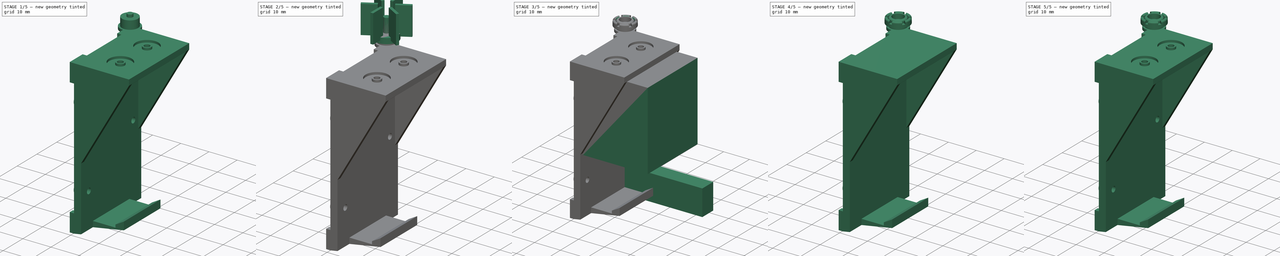
[diagram: build sequence overview — one tinted view per stage of 5, left to right]
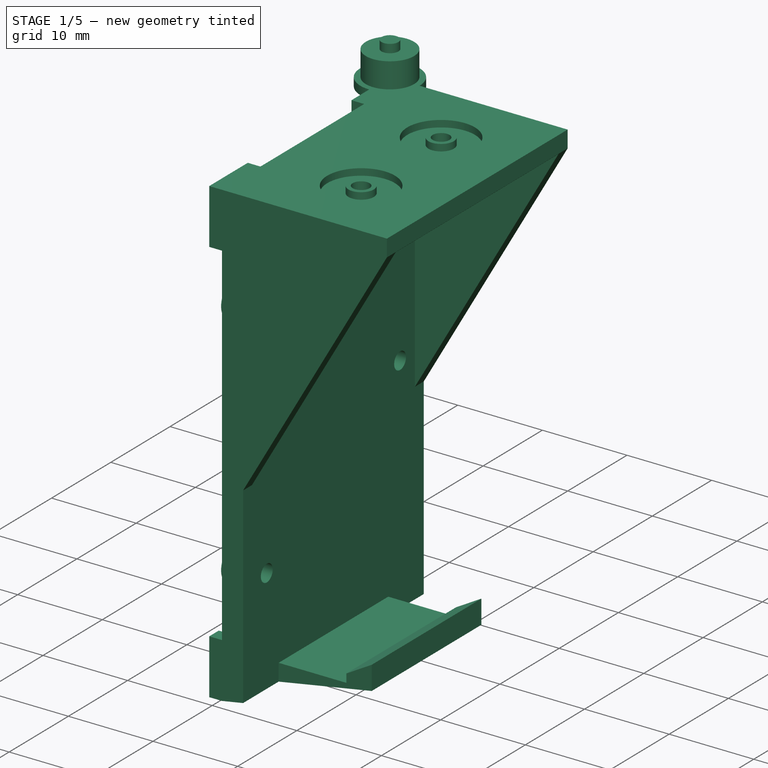
[diagram: stage 1 of 5 — iso view after this stage's code; geometry added in this stage tinted green]
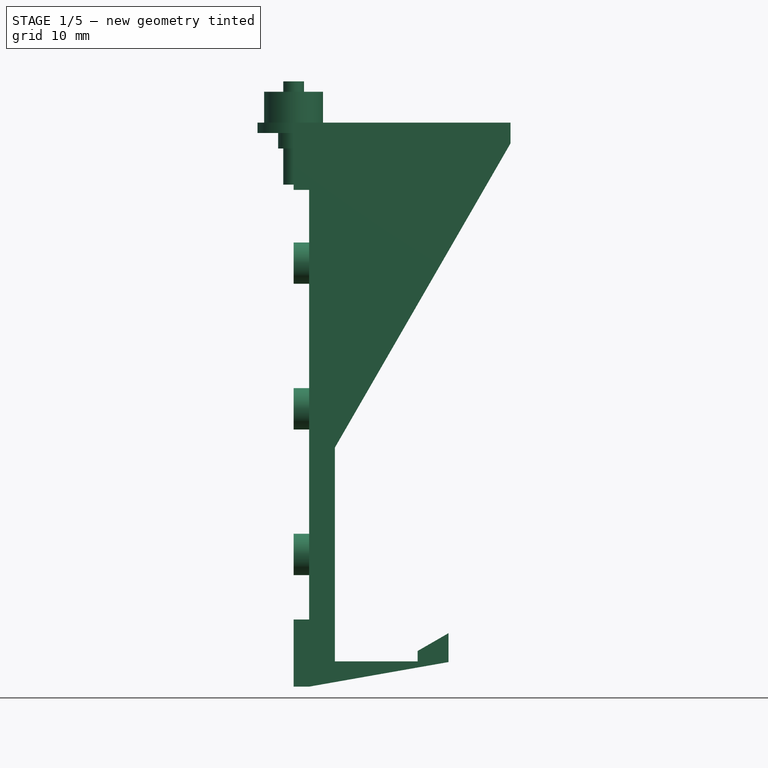
[diagram: stage 1 of 5 — front view after this stage's code; geometry added in this stage tinted green]
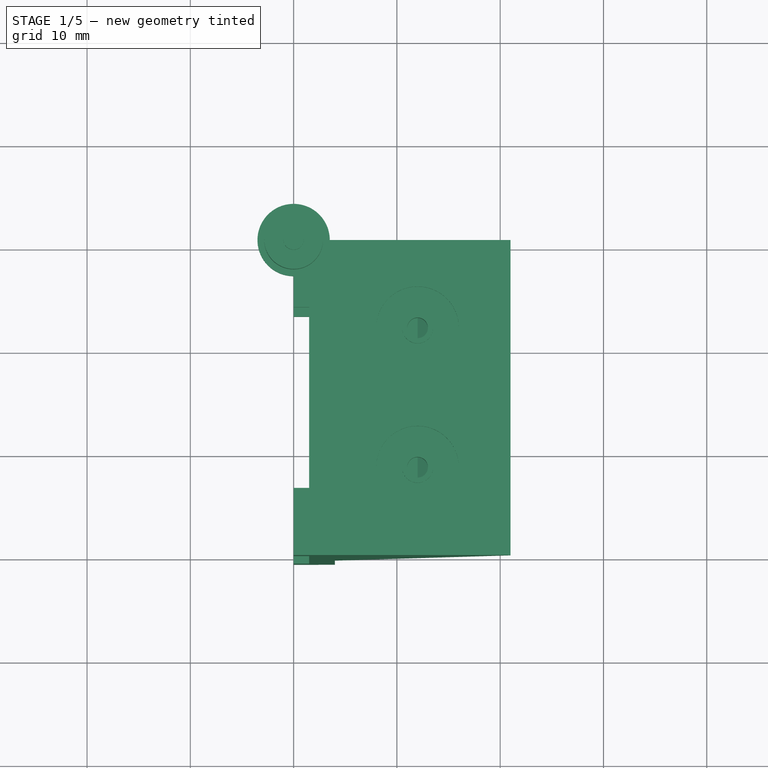
[diagram: stage 1 of 5 — top view after this stage's code; geometry added in this stage tinted green]
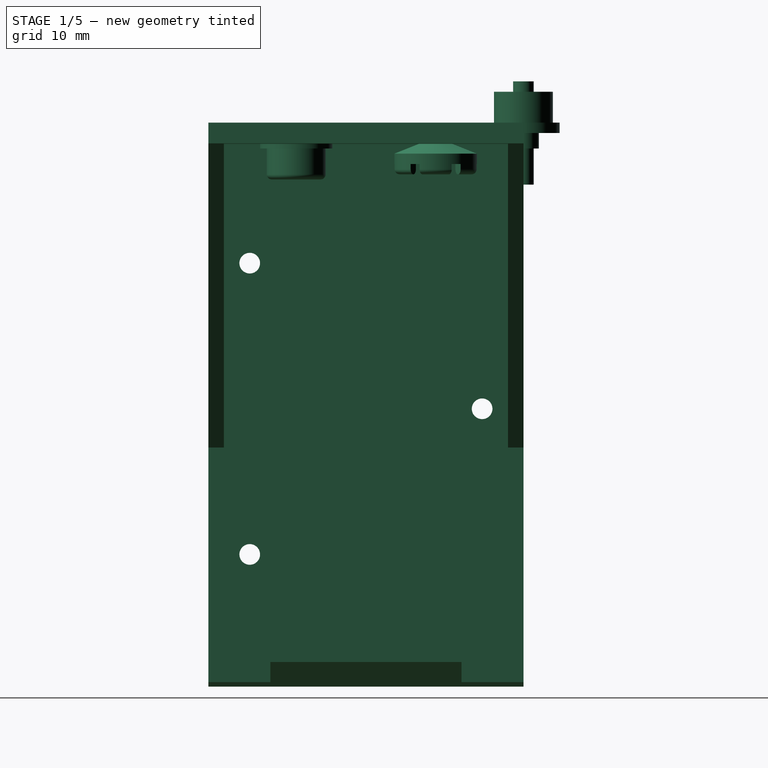
[diagram: stage 1 of 5 — right view after this stage's code; geometry added in this stage tinted green]
FCSTD DOCUMENT  (FreeCAD 0.16R6712 (Git))
Label: battery-holder-6F22
License: CreativeCommons Attribution-ShareAlike
LicenseURL: http://creativecommons.org/licenses/by-sa/4.0/
objects: Part::Cylinder×8, Sketcher::SketchObject×7, Part::Cut×7, PartDesign::Pocket×5, Part::MultiCommon×5, Part::MultiFuse×5, Part::Box×4, Part::Feature×4, App::DocumentObjectGroup×3, PartDesign::Pad×2, Part::Fillet×2, Part::Cone×1, Part::Thickness×1, Part::FeaturePython×1, Part::Compound×1
note: 60 computed .brp shape members not serialized (recipe doc carries the construction recipe); baked Part::Feature solids carry a one-line shape summary decoded from their .brp

FEATURE [App::DocumentObjectGroup] Group  label="Body"
  Group = -> [Common004]
FEATURE [Part::Cylinder] Cylinder
  Angle = 360
  Height = 3
  Radius = 2.85
FEATURE [Part::Cylinder] Cylinder001
  Angle = 360
  Height = 1
  Placement = pos=(0,0,-1) rot=(0,0,1;0rad)
  Radius = 3.5
FEATURE [Part::MultiFuse] Fusion001
  Shapes = -> [Cylinder001,Cylinder]
FEATURE [Part::Cylinder] Cylinder002
  Angle = 360
  Height = 2
  Placement = pos=(0,0,-2.5) rot=(0,0,1;0rad)
  Radius = 1.5
FEATURE [Part::Cylinder] Cylinder003
  Angle = 360
  Height = 3
  Radius = 2
FEATURE [Part::MultiFuse] Fusion002
  Shapes = -> [Cylinder002,Fusion001]
FEATURE [Part::Cylinder] Cylinder004
  Angle = 360
  Height = 10
  Placement = pos=(0,0,-6) rot=(0,0,1;0rad)
  Radius = 1
FEATURE [App::DocumentObjectGroup] Group001  label="-"
  Group = -> [Fillet]
FEATURE [Part::Feature] Common004001  label="Common005"
  shape: bbox 21 x 30.5 x 54.6 mm, 54 faces (baked)
FEATURE [Part::Feature] Fillet003
  Placement = pos=(12,-22,-2.5) rot=(0,1,0;3.14159rad)
  shape: bbox 7 x 7 x 5.5 mm, 11 faces (baked)
FEATURE [Part::Feature] Fillet002001  label="Fillet004"
  Placement = pos=(12,-8.5,-2) rot=(0,1,0;3.14159rad)
  shape: bbox 8.341 x 8.594 x 5.002 mm, 46 faces (baked)
FEATURE [Part::Compound] Compound
  Links = -> [Common004001,Fillet003,Fillet002001]
FEATURE [Part::Feature] Compound001
  shape: bbox 21 x 30.5 x 54.6 mm, 111 faces, 3 solids (baked)
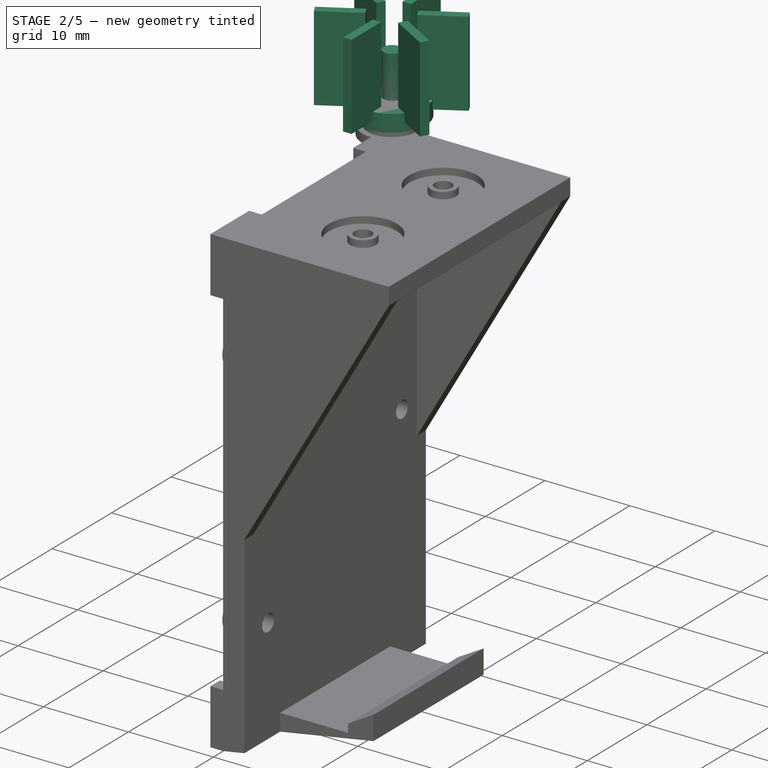
[diagram: stage 2 of 5 — iso view after this stage's code; geometry added in this stage tinted green]
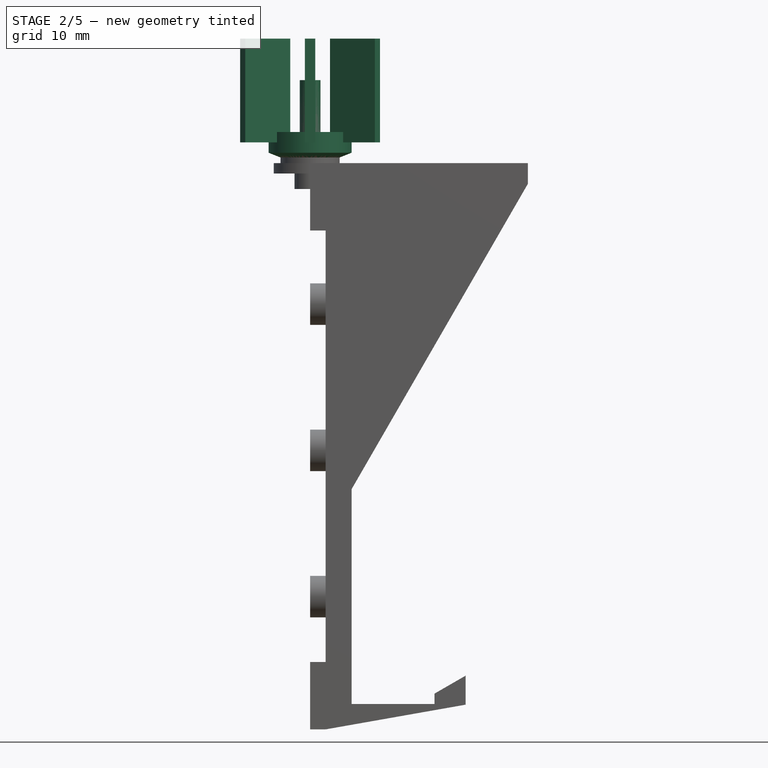
[diagram: stage 2 of 5 — front view after this stage's code; geometry added in this stage tinted green]
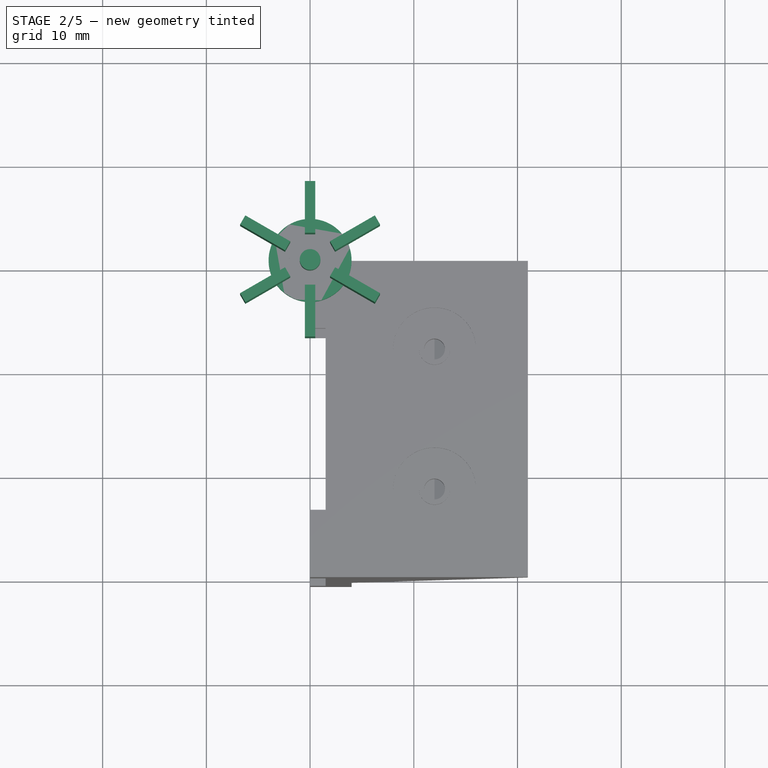
[diagram: stage 2 of 5 — top view after this stage's code; geometry added in this stage tinted green]
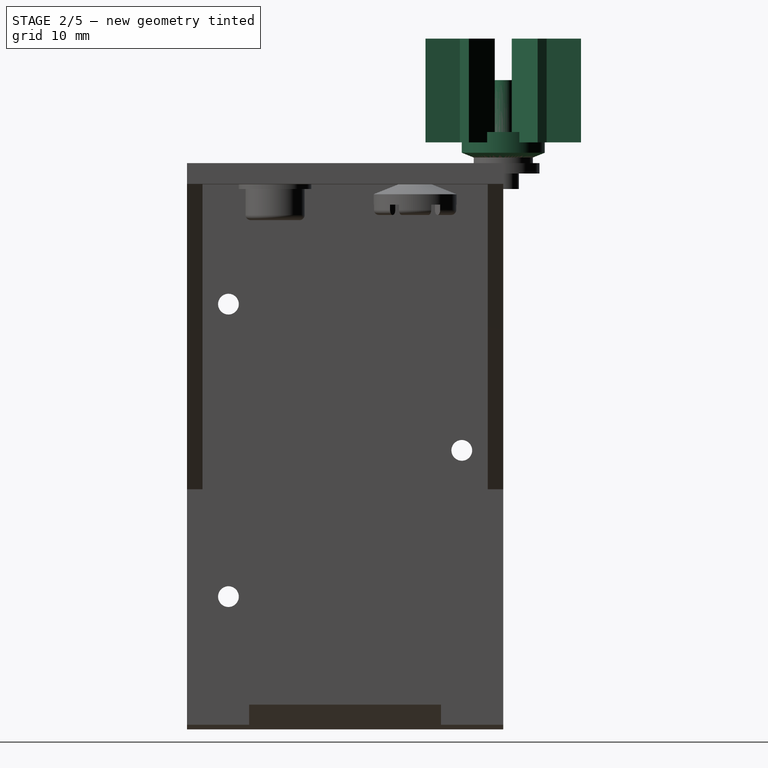
[diagram: stage 2 of 5 — right view after this stage's code; geometry added in this stage tinted green]
FEATURE [Part::Cut] Cut003
  Base = -> Fusion002
  Tool = -> Cylinder003
FEATURE [Part::Cut] Cut004
  Base = -> Cut003
  Tool = -> Cylinder004
FEATURE [Part::Cone] Cone
  Angle = 360
  Height = 1
  Radius1 = 1.5
  Radius2 = 4
FEATURE [Part::Cylinder] Cylinder005
  Angle = 360
  Height = 2
  Placement = pos=(0,0,1) rot=(0,0,1;0rad)
  Radius = 4
FEATURE [Part::Box] Box003  label="Cube003"
  Height = 10
  Length = 1
  Placement = pos=(-0.5,2.5,2) rot=(0,0,1;0rad)
  Width = 5
FEATURE [Part::FeaturePython] Array  # Draft array (typed FeaturePython)
  Angle = 360
  ArrayType = 1
  Axis = (0,0,1)
  Base = -> Box003
  Center = (0,0,0)
  Fuse = false
  IntervalAxis = (0,0,0)
  IntervalX = (1,0,0)
  IntervalY = (0,1,0)
  IntervalZ = (0,0,0)
  NumberPolar = 6
  NumberX = 2
  NumberY = 2
  NumberZ = 1
FEATURE [Part::Cylinder] Cylinder006
  Angle = 360
  Height = 3
  Placement = pos=(0,0,-2) rot=(0,0,1;0rad)
  Radius = 1.5
FEATURE [Part::Cylinder] Cylinder007
  Angle = 360
  Height = 10
  Placement = pos=(0,0,-2) rot=(0,0,1;0rad)
  Radius = 1
FEATURE [App::DocumentObjectGroup] Group002  label="+"
  Group = -> [Fillet002]
FEATURE [Part::Fillet] Fillet
  Base = -> Cut004
  Edges = 1 edges r=0.5: [Edge14]
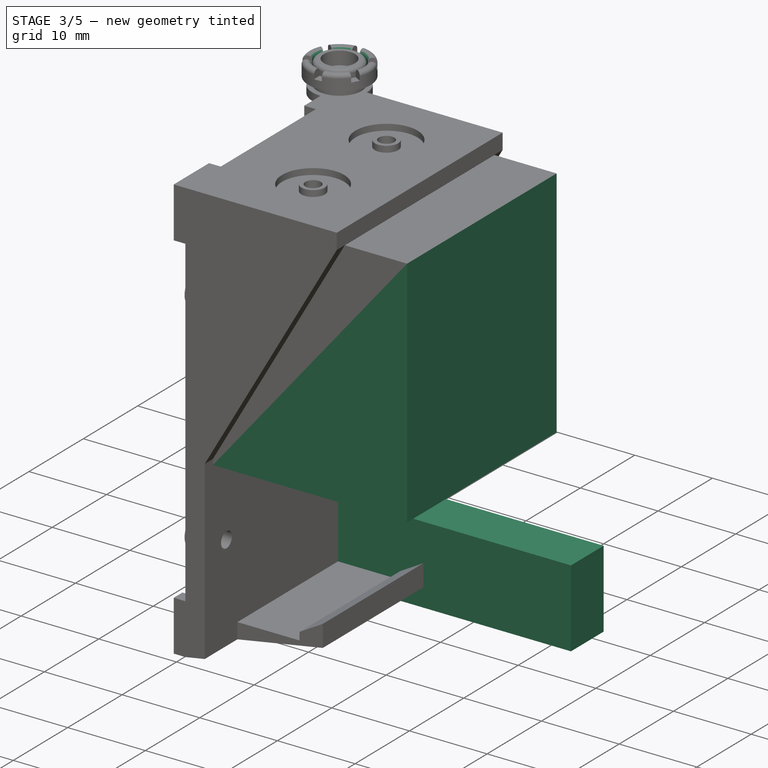
[diagram: stage 3 of 5 — iso view after this stage's code; geometry added in this stage tinted green]
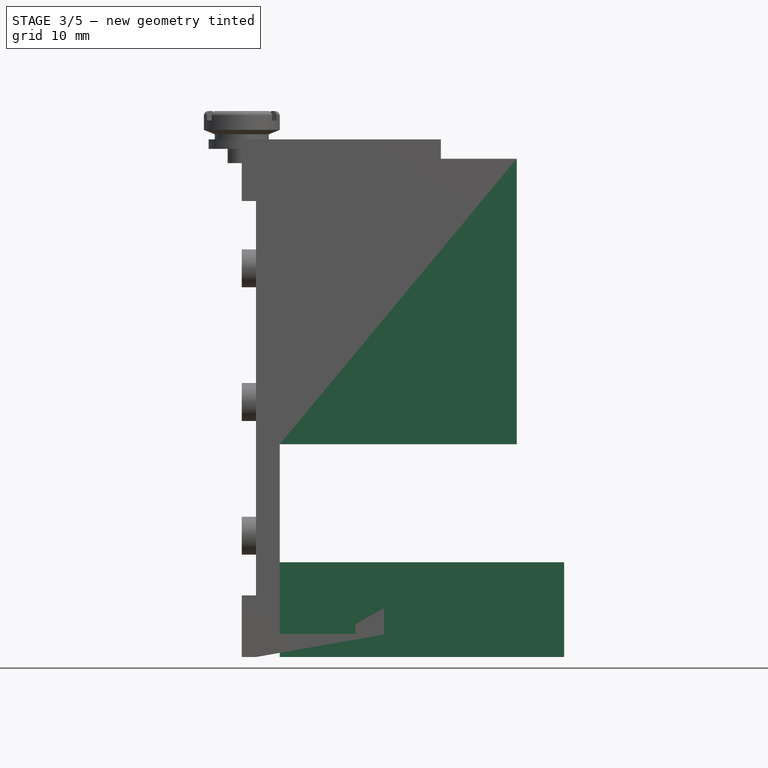
[diagram: stage 3 of 5 — front view after this stage's code; geometry added in this stage tinted green]
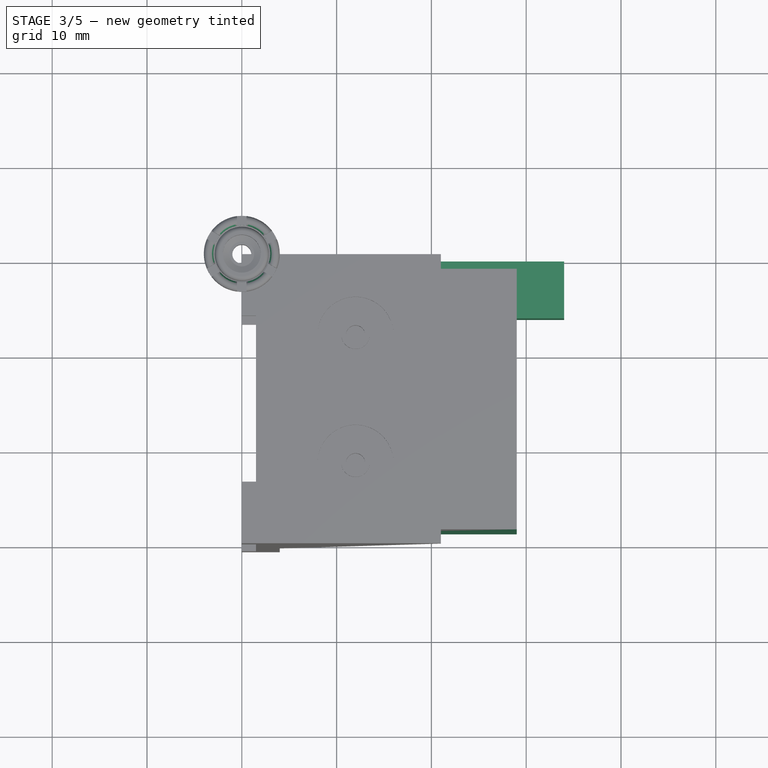
[diagram: stage 3 of 5 — top view after this stage's code; geometry added in this stage tinted green]
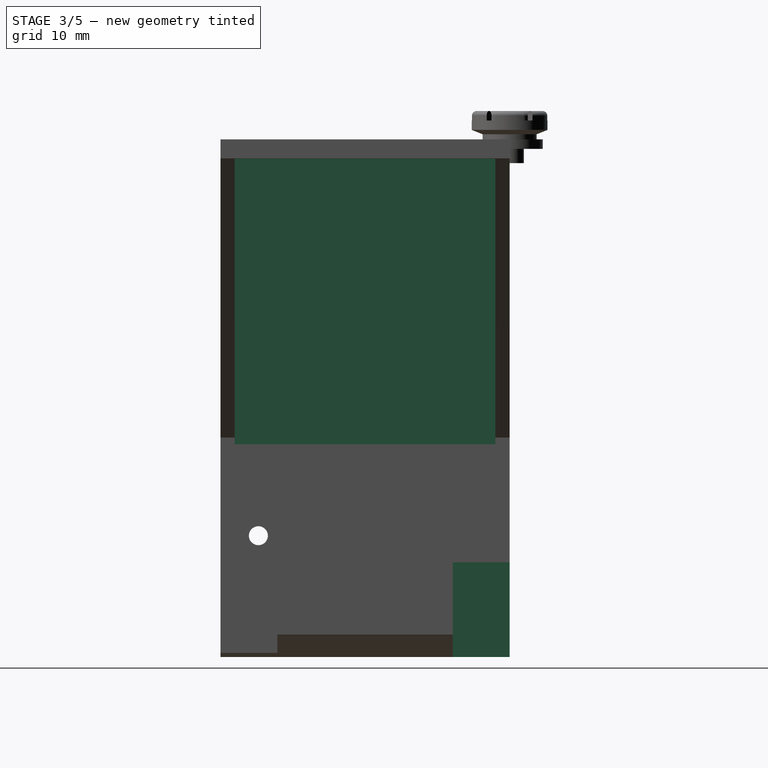
[diagram: stage 3 of 5 — right view after this stage's code; geometry added in this stage tinted green]
FEATURE [Part::Box] Box  label="Cube"
  Height = 30.1147
  Length = 25
  Placement = pos=(4,-29,-32.15) rot=(0,0,1;0rad)
  Width = 27.5
FEATURE [Part::Box] Box001  label="Cube001"
  Height = 10
  Length = 30
  Placement = pos=(4,-6,-54.6) rot=(0,0,1;0rad)
  Width = 6
FEATURE [Part::MultiFuse] Fusion003
  Shapes = -> [Cylinder005,Cone]
FEATURE [Part::Thickness] Thickness
  Faces = -> Fusion003 [Face1]
  Intersection = false
  Join = 0
  Mode = 0
  SelfIntersection = false
  Value = -1
FEATURE [Part::Cut] Cut005
  Base = -> Thickness
  Tool = -> Array
FEATURE [Part::MultiFuse] Fusion004
  Shapes = -> [Cylinder006,Cut005]
FEATURE [Part::Cut] Cut006
  Base = -> Fusion004
  Tool = -> Cylinder007
FEATURE [Part::Fillet] Fillet002
  Base = -> Cut006
  Edges = 14 edges r=0.49: [Edge11,Edge15,Edge19,Edge23,Edge27,Edge31,Edge35,Edge38,Edge41,Edge48,Edge56,Edge64,Edge73,Edge81]
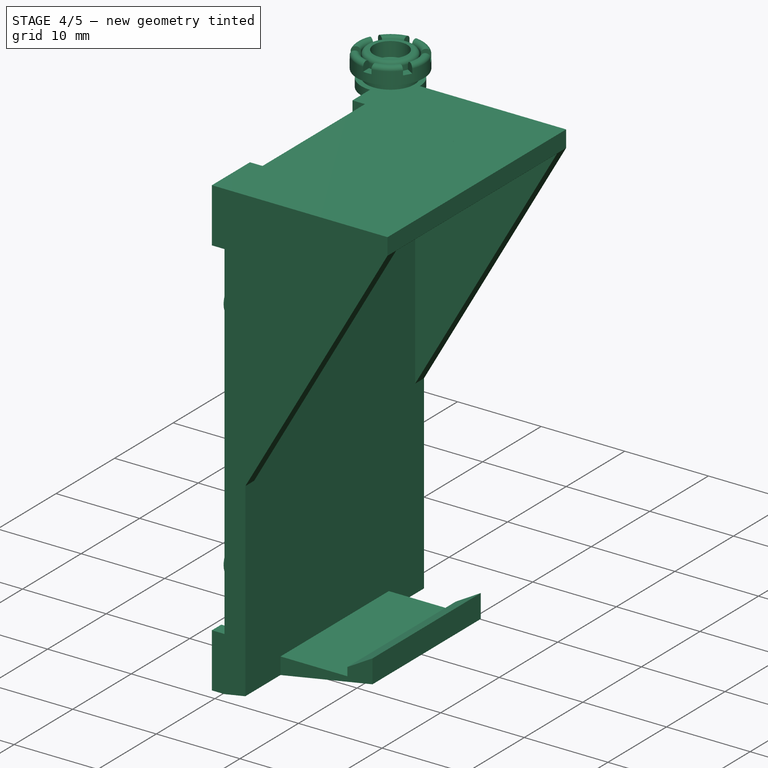
[diagram: stage 4 of 5 — iso view after this stage's code; geometry added in this stage tinted green]
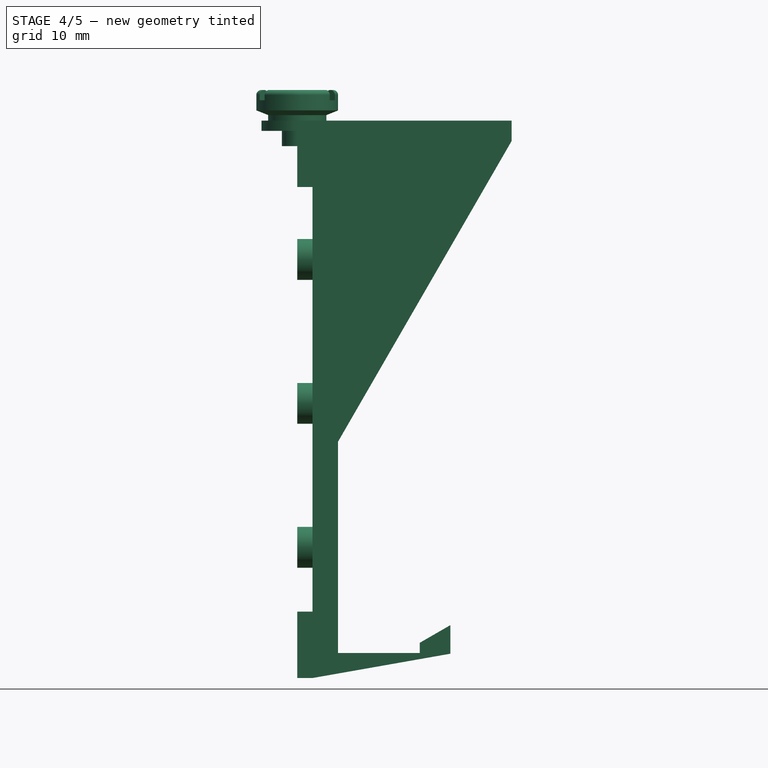
[diagram: stage 4 of 5 — front view after this stage's code; geometry added in this stage tinted green]
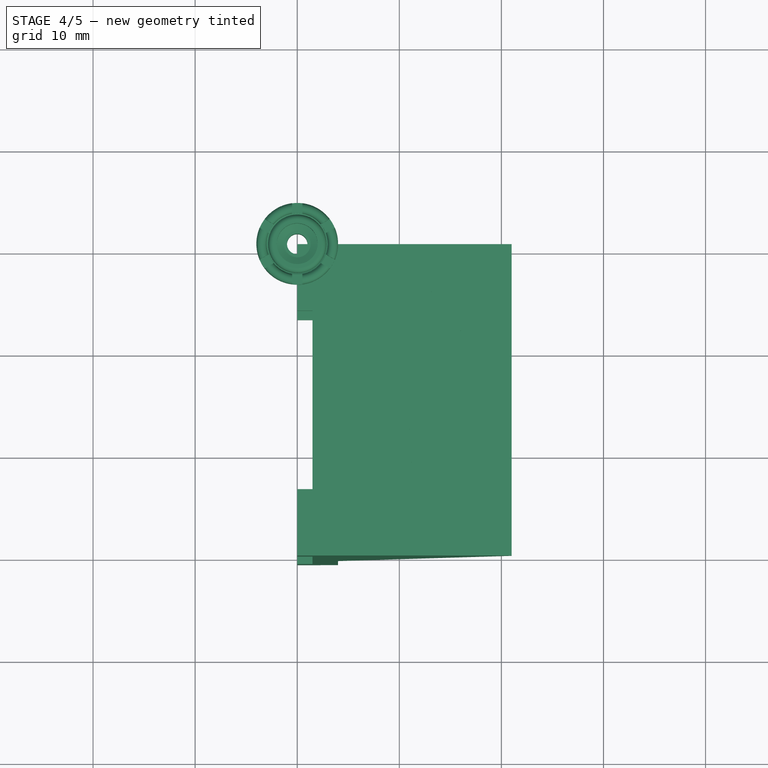
[diagram: stage 4 of 5 — top view after this stage's code; geometry added in this stage tinted green]
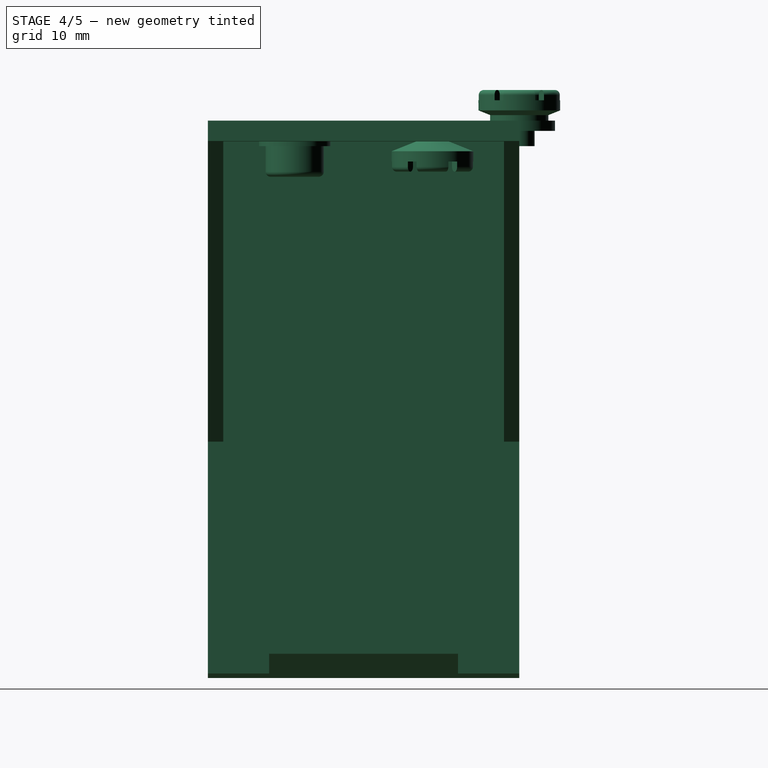
[diagram: stage 4 of 5 — right view after this stage's code; geometry added in this stage tinted green]
FEATURE [Sketcher::SketchObject] Sketch
  Placement = pos=(0,0,0) rot=(1,0,0;1.5708rad)
  sketch-geometry (15):
    g0: LineSegment StartX=0 StartY=0 StartZ=0 EndX=21 EndY=0 EndZ=0
    g1: LineSegment StartX=4 StartY=-31.4449 StartZ=0 EndX=4 EndY=-52.1516 EndZ=0
    g2: LineSegment StartX=4 StartY=-52.1516 StartZ=0 EndX=12 EndY=-52.1516 EndZ=0
    g3: LineSegment StartX=12 StartY=-52.1516 StartZ=0 EndX=12 EndY=-51.1516 EndZ=0
    g4: LineSegment StartX=12 StartY=-51.1516 StartZ=0 EndX=15 EndY=-49.4196 EndZ=0
    g5: LineSegment StartX=15 StartY=-49.4196 StartZ=0 EndX=15 EndY=-52.2196 EndZ=0
    g6: LineSegment StartX=15 StartY=-52.2196 StartZ=0 EndX=1.5 EndY=-54.6 EndZ=0
    g7: LineSegment StartX=1.5 StartY=-54.6 StartZ=0 EndX=0 EndY=-54.6 EndZ=0
    g8: LineSegment StartX=0 StartY=-54.6 StartZ=0 EndX=0 EndY=-48.1 EndZ=0
    g9: LineSegment StartX=0 StartY=-48.1 StartZ=0 EndX=1.5 EndY=-48.1 EndZ=0
    g10: LineSegment StartX=1.5 StartY=-48.1 StartZ=0 EndX=1.5 EndY=-6.5 EndZ=0
    g11: LineSegment StartX=1.5 StartY=-6.5 StartZ=0 EndX=0 EndY=-6.5 EndZ=0
    g12: LineSegment StartX=0 StartY=-6.5 StartZ=0 EndX=0 EndY=0 EndZ=0
    g13: LineSegment StartX=21 StartY=0 StartZ=0 EndX=21 EndY=-2 EndZ=0
    g14: LineSegment StartX=21 StartY=-2 StartZ=0 EndX=4 EndY=-31.4449 EndZ=0
  constraints (45):
    c: PointOnObject(g0,g-1)
    c: Vertical(g1)
    c: Coincident(g1,g2)
    c: Coincident(g2,g3)
    c: Coincident(g3,g4)
    c: Coincident(g4,g5)
    c: Coincident(g5,g6)
    c: Coincident(g6,g7)
    c: Coincident(g7,g8)
    c: Vertical(g8)
    c: Coincident(g8,g9)
    c: Coincident(g9,g10)
    c: Vertical(g10)
    c: Coincident(g10,g11)
    c: Coincident(g11,g12)
    c: Coincident(g12,g0)
    c: Vertical(g12)
    c: Coincident(g0,g13)
    c: Vertical(g13)
    c: Coincident(g13,g14)
    c: Coincident(g14,g1)
    c: PointOnObject(g0,g-1)
    c: DistanceX(g0,g0) = 21
    c: DistanceX(g10,g1) = 2.5
    c: Horizontal(g11)
    c: Horizontal(g9)
    c: Horizontal(g7)
    c: DistanceY(g7,g-1) = 54.6
    c: DistanceX(g7,g6) = 1.5
    c: Equal(g7,g9)
    c: Equal(g9,g11)
    c: DistanceY(g13,g13) = 2
    c: Angle(g0,g14) = 1.0472
    c: Vertical(g5)
    c: DistanceY(g5,g5) = 2.8
    c: Angle(g6,g-2) = 1.39626
    c: Vertical(g3)
    c: Horizontal(g2)
    c: Angle(g-2,g4) = 2.0944
    c: DistanceY(g2,g3) = 1
    c: PointOnObject(g0,g-2)
    c: DistanceY(g7,g8) = 6.5
    c: Equal(g8,g12)
    c: DistanceX(g3,g4) = 3
    c: DistanceX(g7,g5) = 15
FEATURE [PartDesign::Pad] Pad
  Length = 30.5
  Length2 = 100
  Placement = pos=(0,0,0) rot=(1,0,0;1.5708rad)
  Sketch = -> Sketch
  Type = 0
FEATURE [Part::Cut] Cut
  Base = -> Pad
  Tool = -> Box
FEATURE [Part::Box] Box002  label="Cube002"
  Height = 10
  Length = 30
  Placement = pos=(4,-30.5,-54.6) rot=(0,0,1;0rad)
  Width = 6
FEATURE [Part::Cut] Cut001
  Base = -> Cut
  Tool = -> Box001
FEATURE [Part::Cut] Cut002
  Base = -> Cut001
  Tool = -> Box002
FEATURE [Sketcher::SketchObject] Sketch001
  ExternalGeometry = -> [Cut002]
  Placement = pos=(0,0,0) rot=(0.57735,-0.57735,-0.57735;2.0944rad)
  Support = -> Cut002 [Face2]
  sketch-geometry (8):
    g0: LineSegment StartX=6.5 StartY=3.4 StartZ=0 EndX=24 EndY=3.4 EndZ=0
    g1: LineSegment StartX=24 StartY=3.4 StartZ=0 EndX=24 EndY=-1.6 EndZ=0
    g2: LineSegment StartX=24 StartY=-1.6 StartZ=0 EndX=28.9 EndY=-1.6 EndZ=0
    g3: LineSegment StartX=28.9 StartY=-1.6 StartZ=0 EndX=28.9 EndY=-6.5 EndZ=0
    g4: LineSegment StartX=28.9 StartY=-6.5 StartZ=0 EndX=1.6 EndY=-6.5 EndZ=0
    g5: LineSegment StartX=1.6 StartY=-6.5 StartZ=0 EndX=1.6 EndY=-1.6 EndZ=0
    g6: LineSegment StartX=1.6 StartY=-1.6 StartZ=0 EndX=6.5 EndY=-1.6 EndZ=0
    g7: LineSegment StartX=6.5 StartY=-1.6 StartZ=0 EndX=6.5 EndY=3.4 EndZ=0
  constraints (24):
    c: Horizontal(g0)
    c: Coincident(g0,g1)
    c: Vertical(g1)
    c: Coincident(g1,g2)
    c: Horizontal(g2)
    c: Coincident(g2,g3)
    c: Vertical(g3)
    c: Coincident(g3,g4)
    c: Horizontal(g4)
    c: Coincident(g4,g5)
    c: Vertical(g5)
    c: Coincident(g5,g6)
    c: Horizontal(g6)
    c: Coincident(g6,g7)
    c: Coincident(g7,g0)
    c: Vertical(g7)
    c: Equal(g5,g6)
    c: Equal(g6,g2)
    c: Equal(g2,g3)
    c: DistanceY(g6,g-1) = 1.6
    c: DistanceX(g-1,g4) = 1.6
    c: DistanceX(g3,g-3) = 1.6
    c: DistanceX(g-1,g6) = 6.5
    c: DistanceY(g1,g1) = 5
FEATURE [PartDesign::Pocket] Pocket
  Length = 1.5
  Sketch = -> Sketch001
  Type = 0
FEATURE [Sketcher::SketchObject] Sketch002
  ExternalGeometry = -> [Pocket]
  Placement = pos=(0,0,0) rot=(0.57735,-0.57735,-0.57735;2.0944rad)
  Support = -> Pocket [Face13]
  sketch-geometry (8):
    g0: LineSegment StartX=1.6 StartY=-48.1 StartZ=0 EndX=28.9 EndY=-48.1 EndZ=0
    g1: LineSegment StartX=28.9 StartY=-48.1 StartZ=0 EndX=28.9 EndY=-53 EndZ=0
    g2: LineSegment StartX=28.9 StartY=-53 StartZ=0 EndX=24 EndY=-53 EndZ=0
    g3: LineSegment StartX=24 StartY=-53 StartZ=0 EndX=24 EndY=-58 EndZ=0
    g4: LineSegment StartX=24 StartY=-58 StartZ=0 EndX=6.5 EndY=-58 EndZ=0
    g5: LineSegment StartX=6.5 StartY=-58 StartZ=0 EndX=6.5 EndY=-53 EndZ=0
    g6: LineSegment StartX=6.5 StartY=-53 StartZ=0 EndX=1.6 EndY=-53 EndZ=0
    g7: LineSegment StartX=1.6 StartY=-53 StartZ=0 EndX=1.6 EndY=-48.1 EndZ=0
  constraints (24):
    c: Horizontal(g0)
    c: Coincident(g0,g1)
    c: Vertical(g1)
    c: Coincident(g1,g2)
    c: Horizontal(g2)
    c: Coincident(g2,g3)
    c: Vertical(g3)
    c: Coincident(g3,g4)
    c: Horizontal(g4)
    c: Coincident(g4,g5)
    c: Vertical(g5)
    c: Coincident(g5,g6)
    c: Horizontal(g6)
    c: Coincident(g6,g7)
    c: Coincident(g7,g0)
    c: Vertical(g7)
    c: Equal(g1,g2)
    c: Equal(g2,g6)
    c: Equal(g6,g7)
    c: DistanceX(g-1,g0) = 1.6
    c: DistanceY(g-3,g1) = 1.6
    c: DistanceY(g-3,g0) = 6.5
    c: DistanceY(g3,g3) = 5
    c: DistanceX(g0,g-3) = 1.6
FEATURE [PartDesign::Pocket] Pocket001
  Length = 1.5
  Sketch = -> Sketch002
  Type = 0
FEATURE [Part::MultiCommon] Common
  Shapes = -> [Cut002,Pocket]
FEATURE [Part::MultiCommon] Common001
  Shapes = -> [Common,Pocket001]
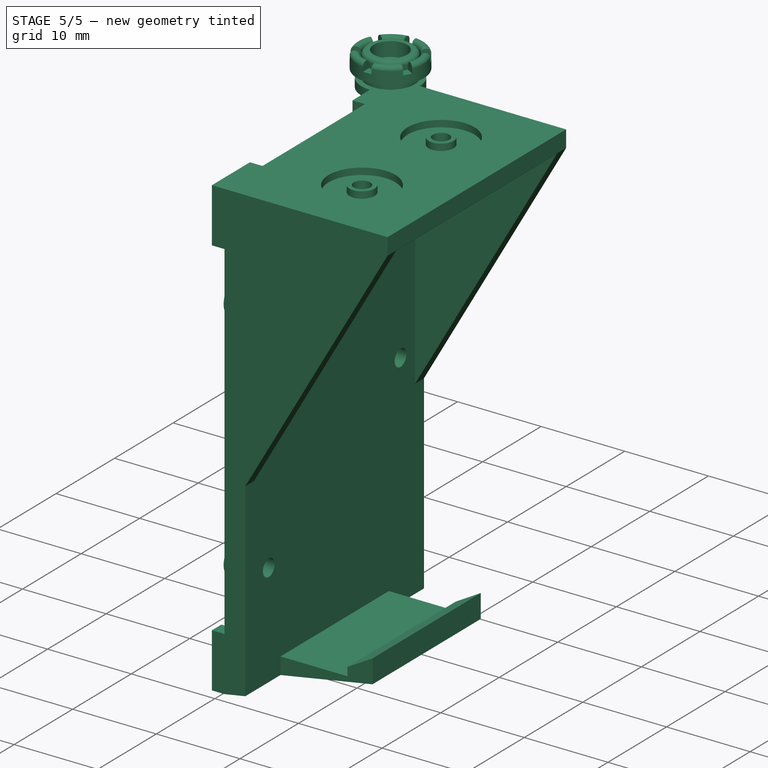
[diagram: stage 5 of 5 — iso view after this stage's code; geometry added in this stage tinted green]
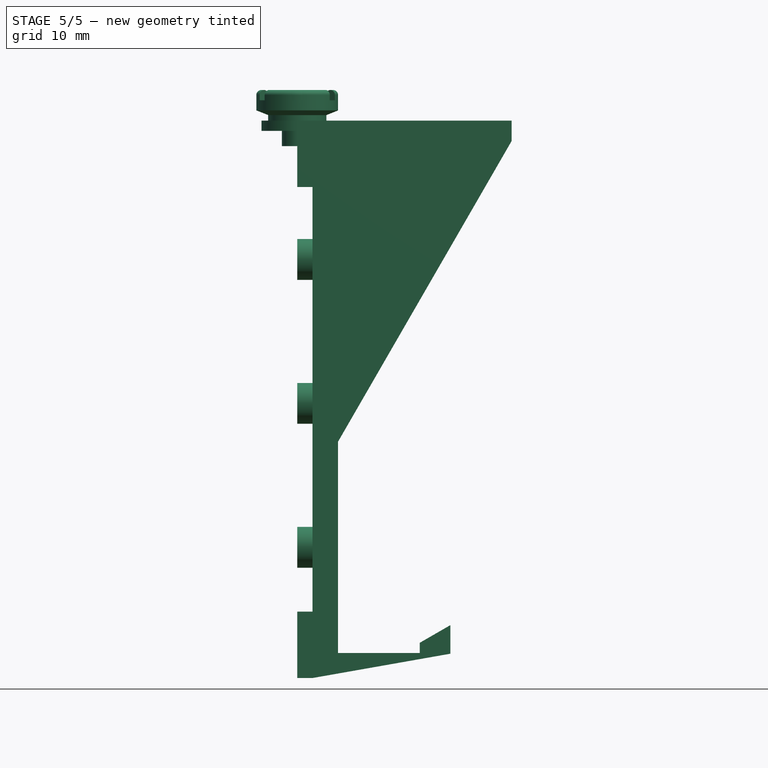
[diagram: stage 5 of 5 — front view after this stage's code; geometry added in this stage tinted green]
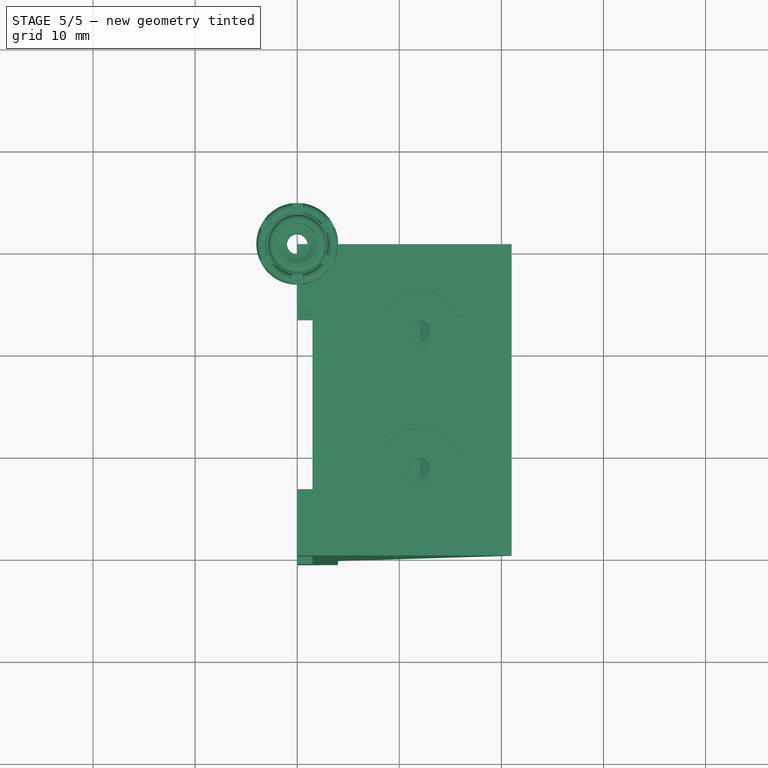
[diagram: stage 5 of 5 — top view after this stage's code; geometry added in this stage tinted green]
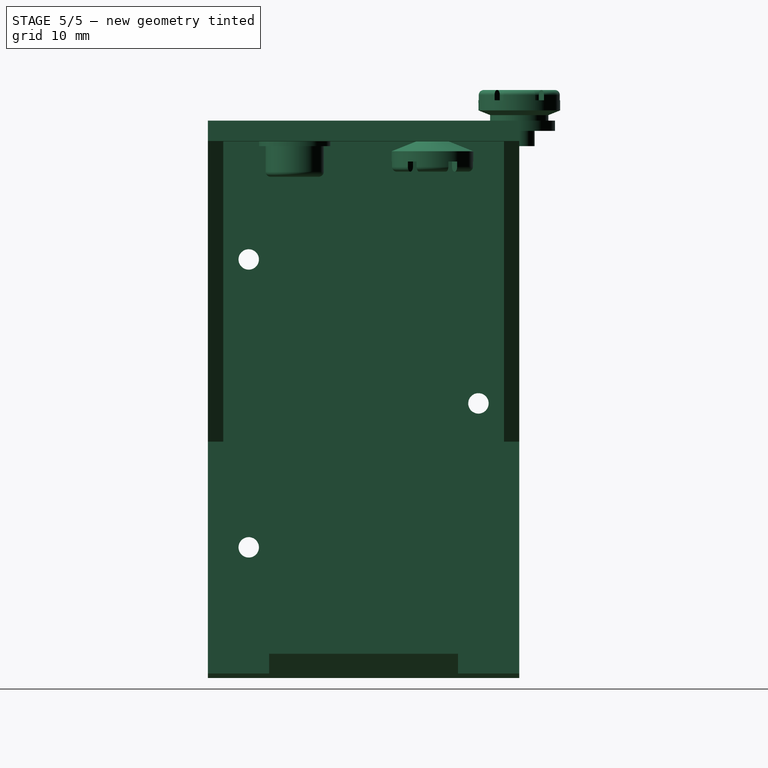
[diagram: stage 5 of 5 — right view after this stage's code; geometry added in this stage tinted green]
FEATURE [Sketcher::SketchObject] Sketch003
  ExternalGeometry = -> [Common001]
  Placement = pos=(1.5,0,0) rot=(0.57735,-0.57735,-0.57735;2.0944rad)
  Support = -> Common001 [Face39]
  sketch-geometry (3):
    g0: Circle CenterX=4 CenterY=-27.7 CenterZ=0 NormalX=0 NormalY=0 NormalZ=1 Radius=2
    g1: Circle CenterX=26.5 CenterY=-13.6 CenterZ=0 NormalX=0 NormalY=0 NormalZ=1 Radius=2
    g2: Circle CenterX=26.5 CenterY=-41.8 CenterZ=0 NormalX=0 NormalY=0 NormalZ=1 Radius=2
  constraints (9):
    c: Equal(g0,g1)
    c: Equal(g1,g2)
    c: Radius(g1) = 2
    c: DistanceY(g1,g-1) = 13.6
    c: DistanceY(g2,g-1) = 41.8
    c: DistanceY(g0,g-1) = 27.7
    c: DistanceX(g-1,g0) = 4
    c: DistanceX(g1,g-3) = 4
    c: DistanceX(g2,g-3) = 4
FEATURE [PartDesign::Pad] Pad001
  Length = 1.5
  Length2 = 100
  Sketch = -> Sketch003
  Type = 0
FEATURE [Part::MultiFuse] Fusion
  Shapes = -> [Pad001,Common001]
FEATURE [Sketcher::SketchObject] Sketch004
  ExternalGeometry = -> [Fusion]
  Placement = pos=(4,0,0) rot=(0.57735,0.57735,0.57735;2.0944rad)
  Support = -> Fusion [Face30]
  sketch-geometry (3):
    g0: Circle CenterX=-26.5 CenterY=-13.6 CenterZ=0 NormalX=0 NormalY=0 NormalZ=1 Radius=1
    g1: Circle CenterX=-26.5 CenterY=-41.8 CenterZ=0 NormalX=0 NormalY=0 NormalZ=1 Radius=1
    g2: Circle CenterX=-4 CenterY=-27.7 CenterZ=0 NormalX=0 NormalY=0 NormalZ=1 Radius=1
  constraints (9):
    c: Equal(g0,g2)
    c: Equal(g2,g1)
    c: Radius(g2) = 1
    c: DistanceY(g0,g-1) = 13.6
    c: DistanceY(g2,g-1) = 27.7
    c: DistanceY(g1,g-1) = 41.8
    c: DistanceX(g2,g-1) = 4
    c: DistanceX(g-3,g0) = 4
    c: DistanceX(g-3,g1) = 4
FEATURE [PartDesign::Pocket] Pocket002
  Length = 5
  Sketch = -> Sketch004
  Type = 0
FEATURE [Part::MultiCommon] Common002
  Shapes = -> [Fusion,Pocket002]
FEATURE [Sketcher::SketchObject] Sketch005
  ExternalGeometry = -> [Common002]
  Support = -> Common002 [Face6]
  sketch-geometry (2):
    g0: Circle CenterX=12 CenterY=-8.5 CenterZ=0 NormalX=0 NormalY=0 NormalZ=1 Radius=1.5
    g1: Circle CenterX=12 CenterY=-22 CenterZ=0 NormalX=0 NormalY=0 NormalZ=1 Radius=1.5
  constraints (6):
    c: Equal(g0,g1)
    c: Radius(g0) = 1.5
    c: DistanceY(g0,g-1) = 8.5
    c: DistanceY(g-3,g1) = 8.5
    c: DistanceX(g-1,g0) = 12
    c: DistanceX(g-1,g1) = 12
FEATURE [PartDesign::Pocket] Pocket003
  Length = 5
  Sketch = -> Sketch005
  Type = 0
FEATURE [Part::MultiCommon] Common003
  Shapes = -> [Pocket003,Common002]
FEATURE [Sketcher::SketchObject] Sketch006
  ExternalGeometry = -> [Common003]
  Support = -> Common003 [Face6]
  sketch-geometry (2):
    g0: Circle CenterX=12 CenterY=-8.5 CenterZ=0 NormalX=0 NormalY=0 NormalZ=1 Radius=4
    g1: Circle CenterX=12 CenterY=-22 CenterZ=0 NormalX=0 NormalY=0 NormalZ=1 Radius=4
  constraints (6):
    c: Equal(g0,g1)
    c: Radius(g0) = 4
    c: DistanceX(g-1,g0) = 12
    c: DistanceX(g-1,g1) = 12
    c: DistanceY(g0,g-1) = 8.5
    c: DistanceY(g-3,g1) = 8.5
FEATURE [PartDesign::Pocket] Pocket004
  Length = 0.8
  Sketch = -> Sketch006
  Type = 0
FEATURE [Part::MultiCommon] Common004
  Shapes = -> [Pocket004,Common003]
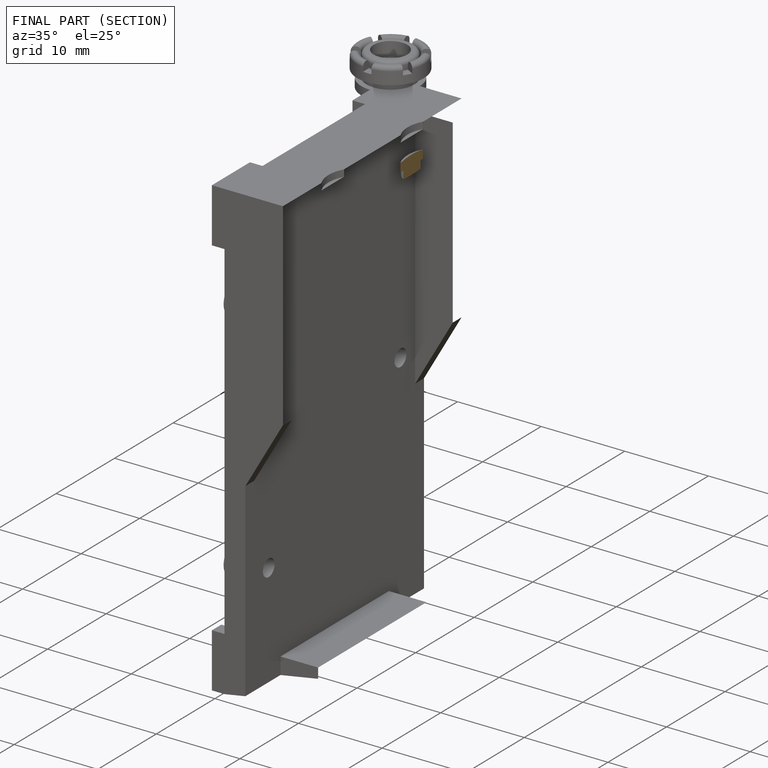
[diagram: finished part — half-section view (interior)]
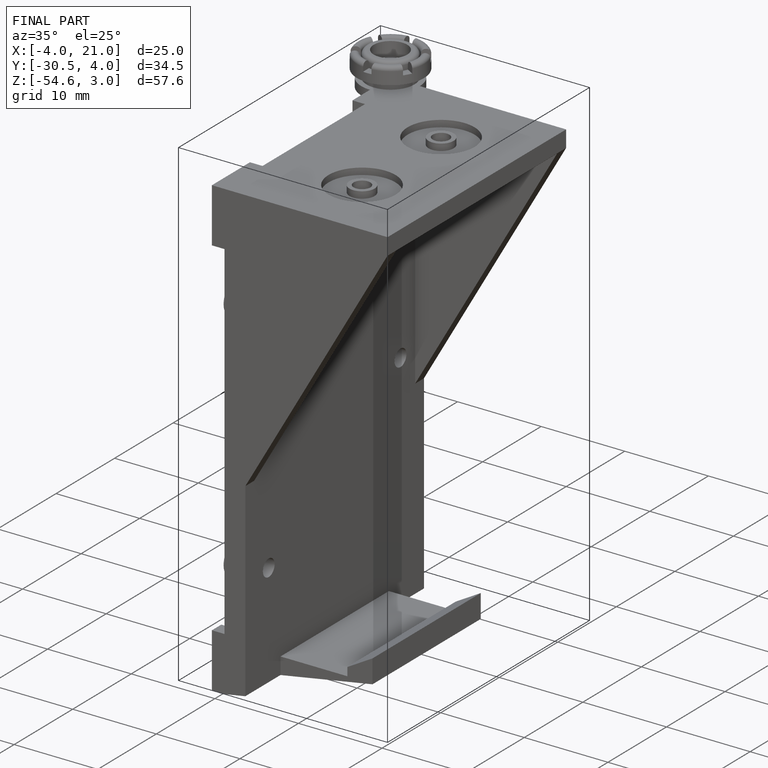
[diagram: finished part — iso view with bounding-box wireframe]
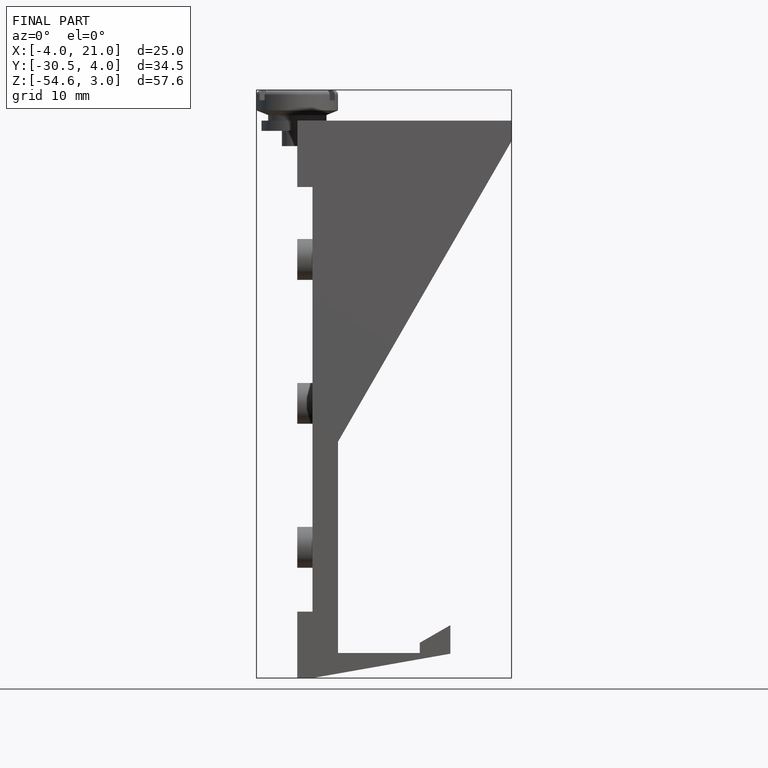
[diagram: finished part — front view with bounding-box wireframe]
